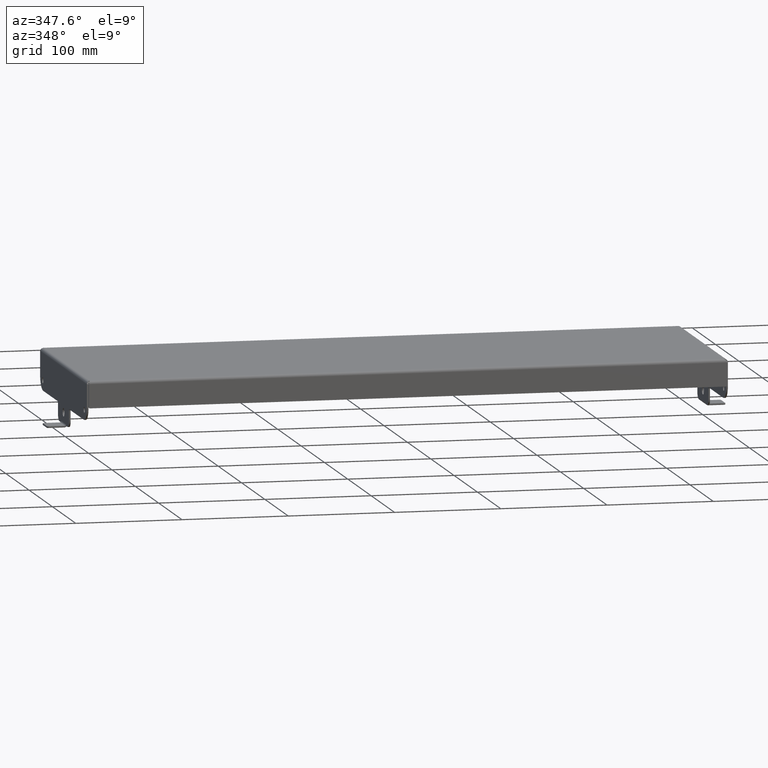
[diagram: clean part render]
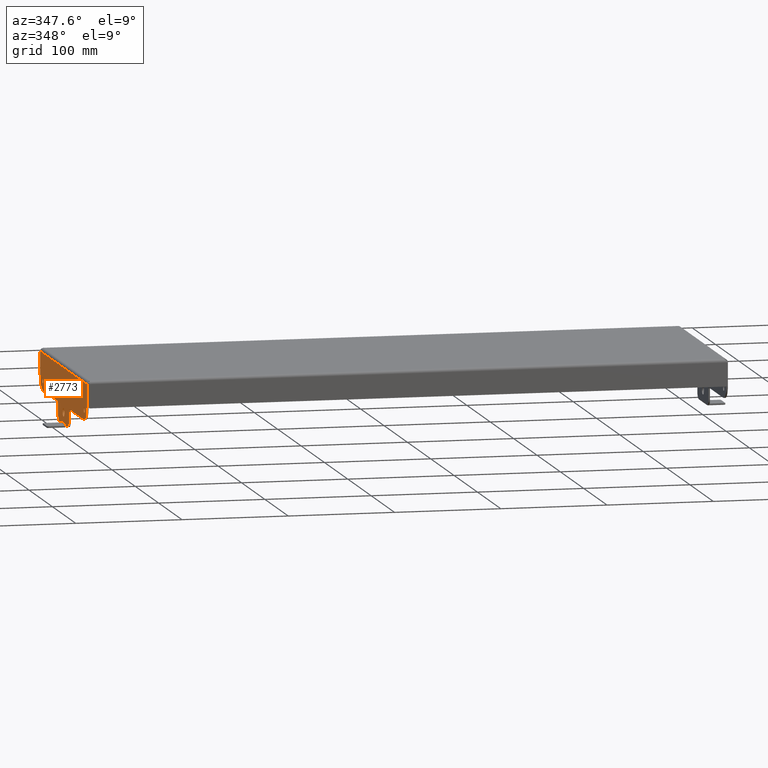
[diagram: same view with one face highlighted and labeled with its STEP entity id]
A machine part, auxiliary view. The second image highlights one B-rep face of the part: STEP entity #2773.
In plain terms, the highlighted planar face has unit normal (-1, 0, 0).
Its self-contained STEP definition (entity closure, byte-faithful):
#10 = VECTOR ( 'NONE', #1063, 39.37007874015748143 ) ;
#33 = VECTOR ( 'NONE', #3032, 39.37007874015748143 ) ;
#52 = CARTESIAN_POINT ( 'NONE',  ( -11.87500000000000000, 0.4324296188425000298, -1.189999999999999947 ) ) ;
#101 = DIRECTION ( 'NONE',  ( -0.0000000000000000000, -0.0000000000000000000, -1.000000000000000000 ) ) ;
#107 = DIRECTION ( 'NONE',  ( -0.0000000000000000000, -1.000000000000000000, 0.0000000000000000000 ) ) ;
#124 = VERTEX_POINT ( 'NONE', #1355 ) ;
#125 = DIRECTION ( 'NONE',  ( 0.0000000000000000000, 0.0000000000000000000, 1.000000000000000000 ) ) ;
#138 = ORIENTED_EDGE ( 'NONE', *, *, #3218, .T. ) ;
#164 = ORIENTED_EDGE ( 'NONE', *, *, #1379, .T. ) ;
#211 = VERTEX_POINT ( 'NONE', #351 ) ;
#243 = VECTOR ( 'NONE', #2102, 39.37007874015748143 ) ;
#258 = CARTESIAN_POINT ( 'NONE',  ( -11.87500000000000000, 0.9375000000000000000, -0.5600000000000000533 ) ) ;
#263 = VERTEX_POINT ( 'NONE', #2498 ) ;
#317 = EDGE_LOOP ( 'NONE', ( #2332 ) ) ;
#326 = EDGE_CURVE ( 'NONE', #2140, #2232, #1521, .T. ) ;
#345 = ORIENTED_EDGE ( 'NONE', *, *, #1022, .T. ) ;
#349 = DIRECTION ( 'NONE',  ( 0.0000000000000000000, 0.0000000000000000000, 1.000000000000000000 ) ) ;
#351 = CARTESIAN_POINT ( 'NONE',  ( -11.87500000000003375, -0.4062500000000000000, -1.129999999999999671 ) ) ;
#364 = CARTESIAN_POINT ( 'NONE',  ( -11.87500000000000000, -3.439999999999999503, -0.5000000000000000000 ) ) ;
#369 = CARTESIAN_POINT ( 'NONE',  ( -11.87500000000000000, 0.9974999999999999423, -0.5000000000000000000 ) ) ;
#382 = LINE ( 'NONE', #52, #1055 ) ;
#392 = CARTESIAN_POINT ( 'NONE',  ( -11.87500000000000000, -0.6875000000000000000, -0.9399999999999999467 ) ) ;
#448 = VECTOR ( 'NONE', #107, 39.37007874015748143 ) ;
#470 = CARTESIAN_POINT ( 'NONE',  ( -11.87500000000000000, 3.439999999999999947, 0.0000000000000000000 ) ) ;
#476 = CARTESIAN_POINT ( 'NONE',  ( -11.87500000000000000, -0.4218499999999997807, -1.129999999999999893 ) ) ;
#500 = EDGE_CURVE ( 'NONE', #3026, #2295, #3096, .T. ) ;
#514 = CARTESIAN_POINT ( 'NONE',  ( -11.87500000000000000, 4.000000000000000000, -0.5000000000000000000 ) ) ;
#516 = VERTEX_POINT ( 'NONE', #2121 ) ;
#530 = VERTEX_POINT ( 'NONE', #2754 ) ;
#535 = DIRECTION ( 'NONE',  ( -0.0000000000000000000, -1.000000000000000000, 0.0000000000000000000 ) ) ;
#571 = CARTESIAN_POINT ( 'NONE',  ( -11.87500000000000000, -0.9975000000000001643, -0.5000000000000000000 ) ) ;
#589 = CARTESIAN_POINT ( 'NONE',  ( -11.87500000000000000, 4.000000000000000000, 0.8800000000000000044 ) ) ;
#604 = CARTESIAN_POINT ( 'NONE',  ( -11.87500000000000000, -0.4218499999999997807, -1.129999999999999893 ) ) ;
#661 = EDGE_CURVE ( 'NONE', #516, #3680, #1283, .T. ) ;
#679 = ORIENTED_EDGE ( 'NONE', *, *, #2708, .T. ) ;
#724 = CARTESIAN_POINT ( 'NONE',  ( -11.87500000000000000, 4.000000000000000000, -1.129999999999999893 ) ) ;
#762 = EDGE_LOOP ( 'NONE', ( #3403 ) ) ;
#797 = CARTESIAN_POINT ( 'NONE',  ( -11.87500000000000000, 4.000000000000000000, -1.189999999999999947 ) ) ;
#798 = EDGE_CURVE ( 'NONE', #2295, #2908, #2835, .T. ) ;
#845 = DIRECTION ( 'NONE',  ( 0.0000000000000000000, 0.0000000000000000000, -1.000000000000000000 ) ) ;
#866 = CIRCLE ( 'NONE', #2034, 0.06000000000000004635 ) ;
#898 = LINE ( 'NONE', #589, #1794 ) ;
#914 = EDGE_CURVE ( 'NONE', #1523, #3297, #3305, .T. ) ;
#924 = DIRECTION ( 'NONE',  ( -0.0000000000000000000, -1.000000000000000000, 0.0000000000000000000 ) ) ;
#947 = CIRCLE ( 'NONE', #3161, 0.1089999999999999997 ) ;
#954 = ORIENTED_EDGE ( 'NONE', *, *, #1918, .T. ) ;
#1021 = DIRECTION ( 'NONE',  ( 1.000000000000000000, -0.0000000000000000000, -0.0000000000000000000 ) ) ;
#1022 = EDGE_CURVE ( 'NONE', #2908, #3068, #1289, .T. ) ;
#1027 = DIRECTION ( 'NONE',  ( 0.0000000000000000000, 0.0000000000000000000, 1.000000000000000000 ) ) ;
#1030 = VECTOR ( 'NONE', #2075, 39.37007874015748143 ) ;
#1050 = CARTESIAN_POINT ( 'NONE',  ( -11.87500000000000178, 0.4324296188428131127, -1.190000000000098312 ) ) ;
#1055 = VECTOR ( 'NONE', #1990, 39.37007874015748143 ) ;
#1063 = DIRECTION ( 'NONE',  ( -0.0000000000000000000, -1.000000000000000000, 0.0000000000000000000 ) ) ;
#1081 = LINE ( 'NONE', #2915, #3414 ) ;
#1087 = FACE_BOUND ( 'NONE', #3126, .T. ) ;
#1124 = FACE_BOUND ( 'NONE', #317, .T. ) ;
#1138 = AXIS2_PLACEMENT_3D ( 'NONE', #1227, #2732, #3986 ) ;
#1167 = EDGE_CURVE ( 'NONE', #3026, #3596, #898, .T. ) ;
#1188 = AXIS2_PLACEMENT_3D ( 'NONE', #3841, #1021, #3823 ) ;
#1206 = EDGE_CURVE ( 'NONE', #124, #1207, #1483, .T. ) ;
#1207 = VERTEX_POINT ( 'NONE', #2074 ) ;
#1219 = CIRCLE ( 'NONE', #3500, 0.1562500000000000000 ) ;
#1222 = VERTEX_POINT ( 'NONE', #3679 ) ;
#1227 = CARTESIAN_POINT ( 'NONE',  ( -11.87500000000000000, -3.439999999999999947, 0.0000000000000000000 ) ) ;
#1239 = CARTESIAN_POINT ( 'NONE',  ( -11.87500000000000000, -0.6875000000000000000, -1.189999999999999947 ) ) ;
#1275 = CARTESIAN_POINT ( 'NONE',  ( -11.87499999999847589, -0.4324296188421888343, -1.190000000000414060 ) ) ;
#1283 = CIRCLE ( 'NONE', #3374, 0.2499999999999999167 ) ;
#1284 = VERTEX_POINT ( 'NONE', #1239 ) ;
#1289 = LINE ( 'NONE', #3057, #2959 ) ;
#1295 = CARTESIAN_POINT ( 'NONE',  ( -11.87499999999864464, 0.4062500000000000000, -1.130000000000102256 ) ) ;
#1346 = VECTOR ( 'NONE', #535, 39.37007874015748143 ) ;
#1355 = CARTESIAN_POINT ( 'NONE',  ( -11.87500000000000000, -0.9374999999999997780, -0.9399999999999999467 ) ) ;
#1363 = CARTESIAN_POINT ( 'NONE',  ( -11.87500000000000000, 0.9375000000000000000, 0.0000000000000000000 ) ) ;
#1366 = CARTESIAN_POINT ( 'NONE',  ( -11.87500000000000000, 4.000000000000000000, -1.189999999999999947 ) ) ;
#1379 = EDGE_CURVE ( 'NONE', #211, #1523, #2089, .T. ) ;
#1389 = VERTEX_POINT ( 'NONE', #258 ) ;
#1426 = ORIENTED_EDGE ( 'NONE', *, *, #1167, .F. ) ;
#1443 = CARTESIAN_POINT ( 'NONE',  ( -11.87500000000000000, -0.9374999999999994449, 0.0000000000000000000 ) ) ;
#1456 = ORIENTED_EDGE ( 'NONE', *, *, #1871, .T. ) ;
#1477 = VECTOR ( 'NONE', #3008, 39.37007874015748143 ) ;
#1483 = LINE ( 'NONE', #1443, #33 ) ;
#1485 = DIRECTION ( 'NONE',  ( 0.0000000000000000000, 0.0000000000000000000, 1.000000000000000000 ) ) ;
#1500 = ORIENTED_EDGE ( 'NONE', *, *, #3778, .T. ) ;
#1507 = CARTESIAN_POINT ( 'NONE',  ( -11.87500000000000000, 3.940000000000099867, 0.8800000000000242073 ) ) ;
#1521 = LINE ( 'NONE', #514, #1346 ) ;
#1523 = VERTEX_POINT ( 'NONE', #604 ) ;
#1539 = AXIS2_PLACEMENT_3D ( 'NONE', #2026, #3887, #125 ) ;
#1543 = CARTESIAN_POINT ( 'NONE',  ( -11.87500000000000000, -3.939999999999999947, 0.0000000000000000000 ) ) ;
#1545 = DIRECTION ( 'NONE',  ( -1.000000000000000000, 0.0000000000000000000, 0.0000000000000000000 ) ) ;
#1597 = AXIS2_PLACEMENT_3D ( 'NONE', #470, #2698, #3279 ) ;
#1624 = DIRECTION ( 'NONE',  ( 1.000000000000000000, -0.0000000000000000000, -0.0000000000000000000 ) ) ;
#1638 = LINE ( 'NONE', #1366, #10 ) ;
#1661 = VECTOR ( 'NONE', #1714, 39.37007874015748143 ) ;
#1705 = CIRCLE ( 'NONE', #3528, 0.06000000000000004635 ) ;
#1714 = DIRECTION ( 'NONE',  ( 0.0000000000000000000, -0.1736481776668088173, -0.9848077530122294476 ) ) ;
#1718 = EDGE_CURVE ( 'NONE', #1284, #124, #3241, .T. ) ;
#1788 = CIRCLE ( 'NONE', #1138, 0.5000000000000000000 ) ;
#1794 = VECTOR ( 'NONE', #2053, 39.37007874015748143 ) ;
#1799 = VECTOR ( 'NONE', #101, 39.37007874015748143 ) ;
#1817 = DIRECTION ( 'NONE',  ( -1.000000000000000000, 0.0000000000000000000, 0.0000000000000000000 ) ) ;
#1831 = CARTESIAN_POINT ( 'NONE',  ( -11.87500000000000000, 3.500000000000000000, -0.01599999999999999686 ) ) ;
#1846 = ORIENTED_EDGE ( 'NONE', *, *, #500, .T. ) ;
#1871 = EDGE_CURVE ( 'NONE', #3068, #1389, #1705, .T. ) ;
#1918 = EDGE_CURVE ( 'NONE', #1978, #530, #382, .T. ) ;
#1962 = CARTESIAN_POINT ( 'NONE',  ( -11.87500000000000000, 0.6875000000000000000, -1.189999999999999947 ) ) ;
#1964 = ORIENTED_EDGE ( 'NONE', *, *, #2636, .T. ) ;
#1975 = ORIENTED_EDGE ( 'NONE', *, *, #3174, .T. ) ;
#1978 = VERTEX_POINT ( 'NONE', #1050 ) ;
#1990 = DIRECTION ( 'NONE',  ( 0.0000000000000000000, -0.1736481776668088173, 0.9848077530122294476 ) ) ;
#1995 = VERTEX_POINT ( 'NONE', #1295 ) ;
#2019 = ORIENTED_EDGE ( 'NONE', *, *, #326, .T. ) ;
#2026 = CARTESIAN_POINT ( 'NONE',  ( -11.87500000000000000, 4.000000000000000000, 0.0000000000000000000 ) ) ;
#2034 = AXIS2_PLACEMENT_3D ( 'NONE', #2753, #2382, #845 ) ;
#2035 = ORIENTED_EDGE ( 'NONE', *, *, #798, .T. ) ;
#2053 = DIRECTION ( 'NONE',  ( 0.0000000000000000000, -1.000000000000000000, 0.0000000000000000000 ) ) ;
#2063 = ORIENTED_EDGE ( 'NONE', *, *, #4020, .T. ) ;
#2074 = CARTESIAN_POINT ( 'NONE',  ( -11.87500000000000000, -0.9374999999999997780, -0.5600000000000000533 ) ) ;
#2075 = DIRECTION ( 'NONE',  ( -0.0000000000000000000, -1.000000000000000000, 0.0000000000000000000 ) ) ;
#2089 = LINE ( 'NONE', #3913, #1477 ) ;
#2102 = DIRECTION ( 'NONE',  ( -0.0000000000000000000, -0.0000000000000000000, -1.000000000000000000 ) ) ;
#2121 = CARTESIAN_POINT ( 'NONE',  ( -11.87500000000000000, 0.9375000000000000000, -0.9399999999999999467 ) ) ;
#2140 = VERTEX_POINT ( 'NONE', #571 ) ;
#2152 = EDGE_LOOP ( 'NONE', ( #1975, #3915, #2063, #954, #138, #1964, #164, #2574, #1500, #2429, #3490, #2278, #2019, #3277, #3046, #1426, #1846, #2035, #345, #1456 ) ) ;
#2156 = CARTESIAN_POINT ( 'NONE',  ( -11.87500000000000000, 0.6875000000000000000, -0.9399999999999999467 ) ) ;
#2232 = VERTEX_POINT ( 'NONE', #364 ) ;
#2257 = AXIS2_PLACEMENT_3D ( 'NONE', #392, #1545, #3182 ) ;
#2278 = ORIENTED_EDGE ( 'NONE', *, *, #3516, .T. ) ;
#2295 = VERTEX_POINT ( 'NONE', #3416 ) ;
#2329 = FACE_BOUND ( 'NONE', #762, .T. ) ;
#2332 = ORIENTED_EDGE ( 'NONE', *, *, #3329, .T. ) ;
#2365 = FACE_OUTER_BOUND ( 'NONE', #2152, .T. ) ;
#2377 = LINE ( 'NONE', #797, #1030 ) ;
#2382 = DIRECTION ( 'NONE',  ( 1.000000000000000000, 0.0000000000000000000, 0.0000000000000000000 ) ) ;
#2429 = ORIENTED_EDGE ( 'NONE', *, *, #1718, .T. ) ;
#2463 = CARTESIAN_POINT ( 'NONE',  ( -11.87500000000000000, 3.439999999999999947, -0.5000000000000000000 ) ) ;
#2498 = CARTESIAN_POINT ( 'NONE',  ( -11.87500000000000000, 0.0000000000000000000, -0.6037499999999998979 ) ) ;
#2526 = LINE ( 'NONE', #2841, #2946 ) ;
#2570 = DIRECTION ( 'NONE',  ( 1.000000000000000000, -0.0000000000000000000, -0.0000000000000000000 ) ) ;
#2574 = ORIENTED_EDGE ( 'NONE', *, *, #914, .T. ) ;
#2581 = DIRECTION ( 'NONE',  ( 6.732375292992332667E-10, -1.000000000000000000, -6.371767783352694644E-11 ) ) ;
#2636 = EDGE_CURVE ( 'NONE', #1995, #211, #3790, .T. ) ;
#2649 = PLANE ( 'NONE',  #1539 ) ;
#2698 = DIRECTION ( 'NONE',  ( -1.000000000000000000, 0.0000000000000000000, 0.0000000000000000000 ) ) ;
#2708 = EDGE_CURVE ( 'NONE', #263, #263, #1219, .T. ) ;
#2732 = DIRECTION ( 'NONE',  ( -1.000000000000000000, 0.0000000000000000000, 0.0000000000000000000 ) ) ;
#2753 = CARTESIAN_POINT ( 'NONE',  ( -11.87500000000000000, -0.9975000000000000533, -0.5600000000000000533 ) ) ;
#2754 = CARTESIAN_POINT ( 'NONE',  ( -11.87500000000321876, 0.4218499999999048566, -1.129999999999478977 ) ) ;
#2773 = ADVANCED_FACE ( 'NONE', ( #1124, #2329, #1087, #2365 ), #2649, .T. ) ;
#2835 = CIRCLE ( 'NONE', #1597, 0.5000000000000000000 ) ;
#2841 = CARTESIAN_POINT ( 'NONE',  ( -11.87500000000000000, -3.939999999999999947, 0.0000000000000000000 ) ) ;
#2865 = DIRECTION ( 'NONE',  ( 0.0000000000000000000, 0.0000000000000000000, -1.000000000000000000 ) ) ;
#2885 = DIRECTION ( 'NONE',  ( 0.0000000000000000000, 0.0000000000000000000, 1.000000000000000000 ) ) ;
#2891 = EDGE_CURVE ( 'NONE', #2232, #2980, #1788, .T. ) ;
#2894 = LINE ( 'NONE', #1363, #1799 ) ;
#2904 = DIRECTION ( 'NONE',  ( 1.000000000000000000, 0.0000000000000000000, 0.0000000000000000000 ) ) ;
#2905 = CARTESIAN_POINT ( 'NONE',  ( -11.87500000000000000, -3.500000000000000000, -0.1250000000000000000 ) ) ;
#2908 = VERTEX_POINT ( 'NONE', #2463 ) ;
#2915 = CARTESIAN_POINT ( 'NONE',  ( -11.87500000000118661, 0.4140499999999707748, -1.129999999999810045 ) ) ;
#2946 = VECTOR ( 'NONE', #349, 39.37007874015748143 ) ;
#2959 = VECTOR ( 'NONE', #924, 39.37007874015748143 ) ;
#2980 = VERTEX_POINT ( 'NONE', #1543 ) ;
#3006 = CIRCLE ( 'NONE', #1188, 0.1089999999999999997 ) ;
#3008 = DIRECTION ( 'NONE',  ( -0.0000000000000000000, -1.000000000000000000, 0.0000000000000000000 ) ) ;
#3026 = VERTEX_POINT ( 'NONE', #1507 ) ;
#3032 = DIRECTION ( 'NONE',  ( 0.0000000000000000000, 0.0000000000000000000, 1.000000000000000000 ) ) ;
#3046 = ORIENTED_EDGE ( 'NONE', *, *, #3540, .T. ) ;
#3057 = CARTESIAN_POINT ( 'NONE',  ( -11.87500000000000000, 4.000000000000000000, -0.5000000000000000000 ) ) ;
#3068 = VERTEX_POINT ( 'NONE', #369 ) ;
#3096 = LINE ( 'NONE', #3625, #243 ) ;
#3112 = VERTEX_POINT ( 'NONE', #1831 ) ;
#3126 = EDGE_LOOP ( 'NONE', ( #679 ) ) ;
#3161 = AXIS2_PLACEMENT_3D ( 'NONE', #2905, #1624, #2885 ) ;
#3174 = EDGE_CURVE ( 'NONE', #1389, #516, #2894, .T. ) ;
#3182 = DIRECTION ( 'NONE',  ( 0.0000000000000000000, 0.0000000000000000000, 1.000000000000000000 ) ) ;
#3218 = EDGE_CURVE ( 'NONE', #530, #1995, #1081, .T. ) ;
#3241 = CIRCLE ( 'NONE', #2257, 0.2499999999999999167 ) ;
#3277 = ORIENTED_EDGE ( 'NONE', *, *, #2891, .T. ) ;
#3279 = DIRECTION ( 'NONE',  ( 0.0000000000000000000, 0.0000000000000000000, 1.000000000000000000 ) ) ;
#3297 = VERTEX_POINT ( 'NONE', #1275 ) ;
#3305 = LINE ( 'NONE', #476, #1661 ) ;
#3329 = EDGE_CURVE ( 'NONE', #1222, #1222, #947, .T. ) ;
#3374 = AXIS2_PLACEMENT_3D ( 'NONE', #2156, #1817, #1485 ) ;
#3403 = ORIENTED_EDGE ( 'NONE', *, *, #3751, .T. ) ;
#3414 = VECTOR ( 'NONE', #2581, 39.37007874015748143 ) ;
#3416 = CARTESIAN_POINT ( 'NONE',  ( -11.87500000000000000, 3.939999999999999947, 1.530808498934191509E-17 ) ) ;
#3490 = ORIENTED_EDGE ( 'NONE', *, *, #1206, .T. ) ;
#3500 = AXIS2_PLACEMENT_3D ( 'NONE', #3807, #2570, #1027 ) ;
#3516 = EDGE_CURVE ( 'NONE', #1207, #2140, #866, .T. ) ;
#3528 = AXIS2_PLACEMENT_3D ( 'NONE', #3783, #2904, #2865 ) ;
#3540 = EDGE_CURVE ( 'NONE', #2980, #3596, #2526, .T. ) ;
#3596 = VERTEX_POINT ( 'NONE', #3725 ) ;
#3625 = CARTESIAN_POINT ( 'NONE',  ( -11.87500000000000000, 3.939999999999999947, 0.0000000000000000000 ) ) ;
#3679 = CARTESIAN_POINT ( 'NONE',  ( -11.87500000000000000, -3.500000000000000000, -0.01599999999999999686 ) ) ;
#3680 = VERTEX_POINT ( 'NONE', #1962 ) ;
#3725 = CARTESIAN_POINT ( 'NONE',  ( -11.87500000000000000, -3.939999999999999947, 0.8800000000000000044 ) ) ;
#3751 = EDGE_CURVE ( 'NONE', #3112, #3112, #3006, .T. ) ;
#3778 = EDGE_CURVE ( 'NONE', #3297, #1284, #1638, .T. ) ;
#3783 = CARTESIAN_POINT ( 'NONE',  ( -11.87500000000000000, 0.9975000000000000533, -0.5600000000000000533 ) ) ;
#3790 = LINE ( 'NONE', #724, #448 ) ;
#3807 = CARTESIAN_POINT ( 'NONE',  ( -11.87500000000000000, 0.0000000000000000000, -0.7599999999999998979 ) ) ;
#3823 = DIRECTION ( 'NONE',  ( 0.0000000000000000000, 0.0000000000000000000, 1.000000000000000000 ) ) ;
#3841 = CARTESIAN_POINT ( 'NONE',  ( -11.87500000000000000, 3.500000000000000000, -0.1250000000000000000 ) ) ;
#3887 = DIRECTION ( 'NONE',  ( -1.000000000000000000, 0.0000000000000000000, 0.0000000000000000000 ) ) ;
#3913 = CARTESIAN_POINT ( 'NONE',  ( -11.87500000000000000, 4.000000000000000000, -1.129999999999999893 ) ) ;
#3915 = ORIENTED_EDGE ( 'NONE', *, *, #661, .T. ) ;
#3986 = DIRECTION ( 'NONE',  ( 0.0000000000000000000, 0.0000000000000000000, 1.000000000000000000 ) ) ;
#4020 = EDGE_CURVE ( 'NONE', #3680, #1978, #2377, .T. ) ;